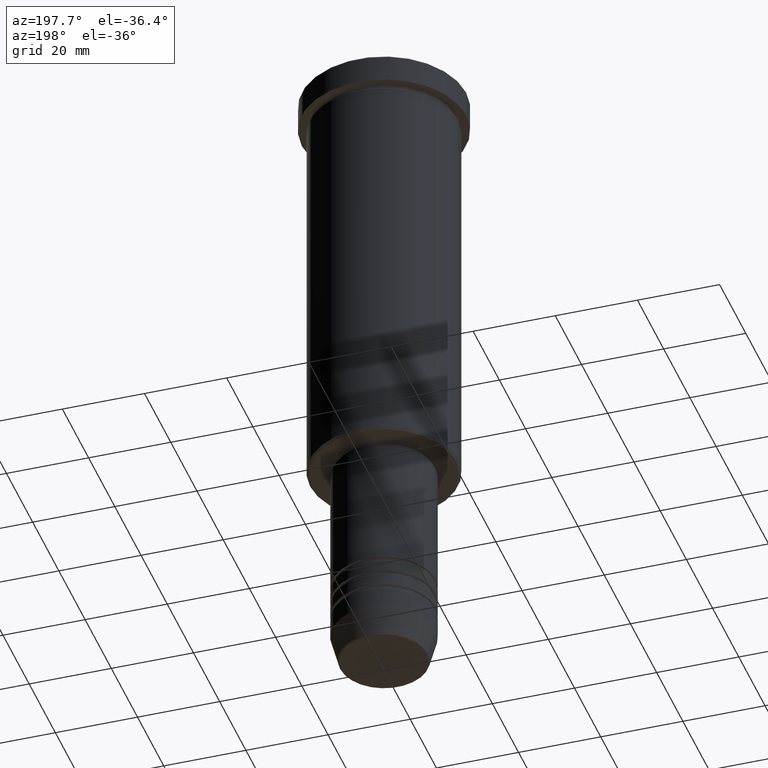
[diagram: clean part render]
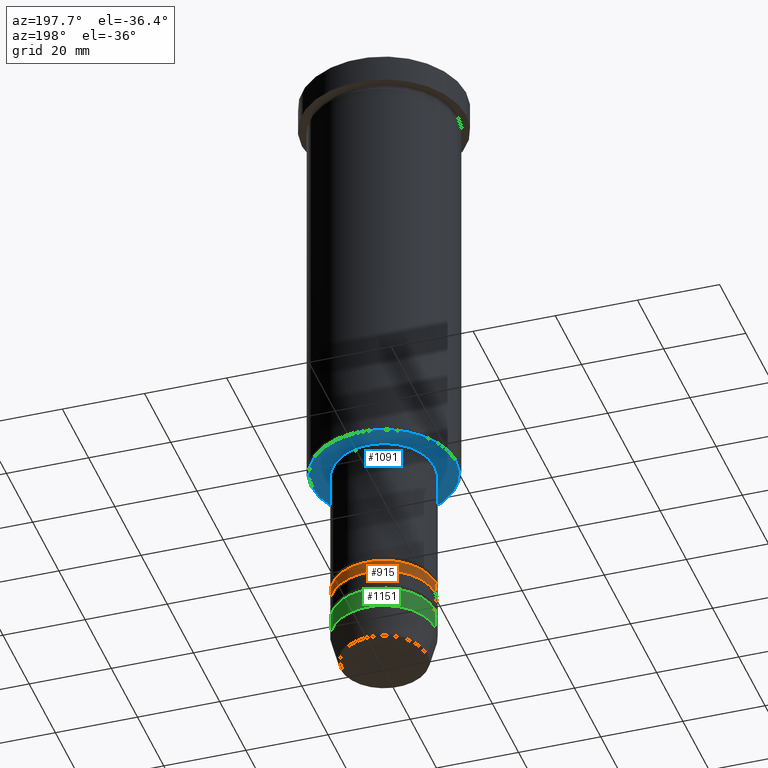
[diagram: same view with three faces highlighted in distinct colors, each labeled with its STEP entity id]
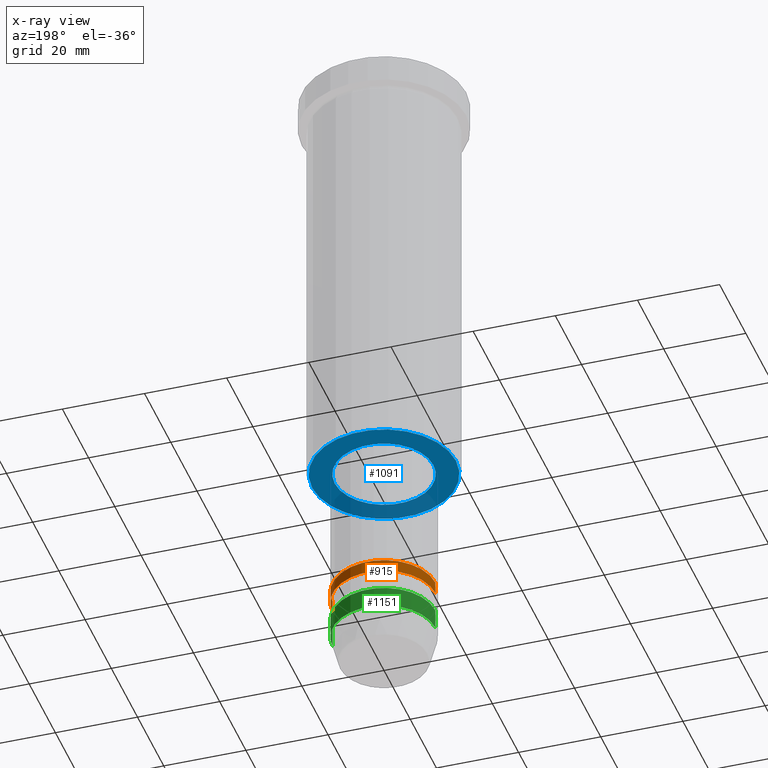
[diagram: x-ray of the same camera — body ghosted, the three highlighted faces saturated]
A machine part, auxiliary view with three faces highlighted in distinct colors.
The next image is the same camera in x-ray (body ghosted, the three faces saturated) — at least one of them is partly hidden behind the body in this view.
Their STEP definitions:

[orange] entity #915 — the highlighted cylindrical surface (partial cylindrical patch) has radius 12.5 mm, axis along (-0, -0, 1).
#20 = AXIS2_PLACEMENT_3D ( 'NONE', #1087, #640, #427 ) ;
#28 = CARTESIAN_POINT ( 'NONE',  ( -12.50000000000000533, 1.530808498934192113E-15, -143.0000000000000000 ) ) ;
#31 = CARTESIAN_POINT ( 'NONE',  ( -12.50000000000000000, 1.530808498934191719E-15, -139.9999999999999716 ) ) ;
#54 = CARTESIAN_POINT ( 'NONE',  ( 12.50000000000000178, 0.000000000000000000, 0.000000000000000000 ) ) ;
#92 = CYLINDRICAL_SURFACE ( 'NONE', #20, 12.50000000000000178 ) ;
#115 = AXIS2_PLACEMENT_3D ( 'NONE', #457, #1181, #264 ) ;
#169 = FACE_OUTER_BOUND ( 'NONE', #317, .T. ) ;
#188 = VERTEX_POINT ( 'NONE', #28 ) ;
#264 = DIRECTION ( 'NONE',  ( 1.000000000000000000, 0.000000000000000000, 0.000000000000000000 ) ) ;
#265 = ORIENTED_EDGE ( 'NONE', *, *, #567, .T. ) ;
#277 = DIRECTION ( 'NONE',  ( -0.000000000000000000, -0.000000000000000000, 1.000000000000000000 ) ) ;
#317 = EDGE_LOOP ( 'NONE', ( #265, #1004, #1134, #694 ) ) ;
#402 = VERTEX_POINT ( 'NONE', #31 ) ;
#427 = DIRECTION ( 'NONE',  ( 1.000000000000000000, 0.000000000000000000, 0.000000000000000000 ) ) ;
#456 = CARTESIAN_POINT ( 'NONE',  ( -12.50000000000000178, 1.530808498934191719E-15, 0.000000000000000000 ) ) ;
#457 = CARTESIAN_POINT ( 'NONE',  ( 0.000000000000000000, 0.000000000000000000, -143.0000000000000000 ) ) ;
#473 = VECTOR ( 'NONE', #277, 1000.000000000000000 ) ;
#567 = EDGE_CURVE ( 'NONE', #688, #188, #625, .T. ) ;
#583 = LINE ( 'NONE', #54, #931 ) ;
#599 = CARTESIAN_POINT ( 'NONE',  ( 0.000000000000000000, 0.000000000000000000, -139.9999999999999716 ) ) ;
#609 = CIRCLE ( 'NONE', #932, 12.50000000000000000 ) ;
#625 = CIRCLE ( 'NONE', #115, 12.50000000000000355 ) ;
#640 = DIRECTION ( 'NONE',  ( -0.000000000000000000, -0.000000000000000000, 1.000000000000000000 ) ) ;
#667 = EDGE_CURVE ( 'NONE', #188, #402, #803, .T. ) ;
#688 = VERTEX_POINT ( 'NONE', #797 ) ;
#691 = DIRECTION ( 'NONE',  ( -0.000000000000000000, -0.000000000000000000, 1.000000000000000000 ) ) ;
#694 = ORIENTED_EDGE ( 'NONE', *, *, #924, .F. ) ;
#797 = CARTESIAN_POINT ( 'NONE',  ( 12.50000000000000355, 0.000000000000000000, -143.0000000000000000 ) ) ;
#803 = LINE ( 'NONE', #456, #473 ) ;
#915 = ADVANCED_FACE ( 'NONE', ( #169 ), #92, .T. ) ;
#924 = EDGE_CURVE ( 'NONE', #688, #1055, #583, .T. ) ;
#931 = VECTOR ( 'NONE', #1132, 1000.000000000000000 ) ;
#932 = AXIS2_PLACEMENT_3D ( 'NONE', #599, #691, #1133 ) ;
#1004 = ORIENTED_EDGE ( 'NONE', *, *, #667, .T. ) ;
#1055 = VERTEX_POINT ( 'NONE', #1057 ) ;
#1057 = CARTESIAN_POINT ( 'NONE',  ( 12.50000000000000000, 0.000000000000000000, -139.9999999999999716 ) ) ;
#1087 = CARTESIAN_POINT ( 'NONE',  ( 0.000000000000000000, 0.000000000000000000, 0.000000000000000000 ) ) ;
#1114 = EDGE_CURVE ( 'NONE', #1055, #402, #609, .T. ) ;
#1132 = DIRECTION ( 'NONE',  ( -0.000000000000000000, -0.000000000000000000, 1.000000000000000000 ) ) ;
#1133 = DIRECTION ( 'NONE',  ( 1.000000000000000000, 0.000000000000000000, 0.000000000000000000 ) ) ;
#1134 = ORIENTED_EDGE ( 'NONE', *, *, #1114, .F. ) ;
#1181 = DIRECTION ( 'NONE',  ( -0.000000000000000000, -0.000000000000000000, 1.000000000000000000 ) ) ;

[blue] entity #1091 — the highlighted planar face has unit normal (0, 0, -1).
#34 = ORIENTED_EDGE ( 'NONE', *, *, #597, .T. ) ;
#36 = CARTESIAN_POINT ( 'NONE',  ( 0.000000000000000000, 0.000000000000000000, -105.9999999999999858 ) ) ;
#39 = CIRCLE ( 'NONE', #267, 17.50000000000001421 ) ;
#43 = CIRCLE ( 'NONE', #836, 12.00000000000000000 ) ;
#49 = DIRECTION ( 'NONE',  ( 0.000000000000000000, 0.000000000000000000, -1.000000000000000000 ) ) ;
#62 = AXIS2_PLACEMENT_3D ( 'NONE', #36, #767, #1167 ) ;
#68 = ORIENTED_EDGE ( 'NONE', *, *, #416, .T. ) ;
#78 = CARTESIAN_POINT ( 'NONE',  ( 0.000000000000000000, 0.000000000000000000, -105.9999999999999858 ) ) ;
#167 = VERTEX_POINT ( 'NONE', #312 ) ;
#173 = VERTEX_POINT ( 'NONE', #479 ) ;
#244 = FACE_BOUND ( 'NONE', #717, .T. ) ;
#246 = CIRCLE ( 'NONE', #929, 17.50000000000001421 ) ;
#267 = AXIS2_PLACEMENT_3D ( 'NONE', #445, #545, #816 ) ;
#312 = CARTESIAN_POINT ( 'NONE',  ( 12.00000000000000000, 0.000000000000000000, -105.9999999999999858 ) ) ;
#332 = DIRECTION ( 'NONE',  ( -0.000000000000000000, -0.000000000000000000, 1.000000000000000000 ) ) ;
#382 = PLANE ( 'NONE',  #664 ) ;
#416 = EDGE_CURVE ( 'NONE', #173, #522, #246, .T. ) ;
#445 = CARTESIAN_POINT ( 'NONE',  ( 0.000000000000000000, 0.000000000000000000, -105.9999999999999858 ) ) ;
#479 = CARTESIAN_POINT ( 'NONE',  ( 17.50000000000001421, 0.000000000000000000, -105.9999999999999858 ) ) ;
#489 = CARTESIAN_POINT ( 'NONE',  ( 0.000000000000000000, 0.000000000000000000, -105.9999999999999858 ) ) ;
#508 = CARTESIAN_POINT ( 'NONE',  ( -12.00000000000000000, 1.469576158976823947E-15, -105.9999999999999858 ) ) ;
#522 = VERTEX_POINT ( 'NONE', #1163 ) ;
#528 = VERTEX_POINT ( 'NONE', #508 ) ;
#545 = DIRECTION ( 'NONE',  ( 0.000000000000000000, 0.000000000000000000, -1.000000000000000000 ) ) ;
#597 = EDGE_CURVE ( 'NONE', #522, #173, #39, .T. ) ;
#613 = EDGE_LOOP ( 'NONE', ( #68, #34 ) ) ;
#642 = DIRECTION ( 'NONE',  ( 0.000000000000000000, 0.000000000000000000, -1.000000000000000000 ) ) ;
#653 = CARTESIAN_POINT ( 'NONE',  ( 0.000000000000000000, 18.00000000000000000, -105.9999999999999858 ) ) ;
#664 = AXIS2_PLACEMENT_3D ( 'NONE', #653, #642, #832 ) ;
#717 = EDGE_LOOP ( 'NONE', ( #1156, #989 ) ) ;
#745 = EDGE_CURVE ( 'NONE', #167, #528, #1084, .T. ) ;
#767 = DIRECTION ( 'NONE',  ( -0.000000000000000000, -0.000000000000000000, 1.000000000000000000 ) ) ;
#816 = DIRECTION ( 'NONE',  ( -1.000000000000000000, 0.000000000000000000, 0.000000000000000000 ) ) ;
#832 = DIRECTION ( 'NONE',  ( -1.000000000000000000, 0.000000000000000000, -0.000000000000000000 ) ) ;
#836 = AXIS2_PLACEMENT_3D ( 'NONE', #78, #332, #1079 ) ;
#929 = AXIS2_PLACEMENT_3D ( 'NONE', #489, #49, #959 ) ;
#959 = DIRECTION ( 'NONE',  ( -1.000000000000000000, 0.000000000000000000, 0.000000000000000000 ) ) ;
#979 = FACE_OUTER_BOUND ( 'NONE', #613, .T. ) ;
#989 = ORIENTED_EDGE ( 'NONE', *, *, #1172, .T. ) ;
#1079 = DIRECTION ( 'NONE',  ( 1.000000000000000000, 0.000000000000000000, 0.000000000000000000 ) ) ;
#1084 = CIRCLE ( 'NONE', #62, 12.00000000000000000 ) ;
#1091 = ADVANCED_FACE ( 'NONE', ( #979, #244 ), #382, .T. ) ;
#1156 = ORIENTED_EDGE ( 'NONE', *, *, #745, .T. ) ;
#1163 = CARTESIAN_POINT ( 'NONE',  ( -17.50000000000001421, 2.173748068486552430E-15, -105.9999999999999858 ) ) ;
#1167 = DIRECTION ( 'NONE',  ( 1.000000000000000000, 0.000000000000000000, 0.000000000000000000 ) ) ;
#1172 = EDGE_CURVE ( 'NONE', #528, #167, #43, .T. ) ;

[green] entity #1151 — the highlighted cylindrical surface (partial cylindrical patch) has radius 12.5 mm, axis along (-0, -0, 1).
#35 = CIRCLE ( 'NONE', #700, 12.50000000000000000 ) ;
#44 = DIRECTION ( 'NONE',  ( -0.000000000000000000, -0.000000000000000000, 1.000000000000000000 ) ) ;
#60 = CARTESIAN_POINT ( 'NONE',  ( -12.50000000000000000, 1.530808498934191521E-15, -148.0000000000000000 ) ) ;
#153 = EDGE_LOOP ( 'NONE', ( #790, #305, #633, #511 ) ) ;
#168 = DIRECTION ( 'NONE',  ( -0.000000000000000000, -0.000000000000000000, 1.000000000000000000 ) ) ;
#182 = EDGE_CURVE ( 'NONE', #1110, #647, #35, .T. ) ;
#212 = VECTOR ( 'NONE', #970, 1000.000000000000000 ) ;
#216 = DIRECTION ( 'NONE',  ( 1.000000000000000000, 0.000000000000000000, 0.000000000000000000 ) ) ;
#218 = LINE ( 'NONE', #1131, #357 ) ;
#285 = CARTESIAN_POINT ( 'NONE',  ( -12.50000000000000000, 1.530808498934191521E-15, -153.0000000000000000 ) ) ;
#305 = ORIENTED_EDGE ( 'NONE', *, *, #892, .T. ) ;
#337 = CYLINDRICAL_SURFACE ( 'NONE', #686, 12.50000000000000000 ) ;
#357 = VECTOR ( 'NONE', #674, 1000.000000000000000 ) ;
#434 = CIRCLE ( 'NONE', #450, 12.50000000000000000 ) ;
#450 = AXIS2_PLACEMENT_3D ( 'NONE', #645, #168, #1177 ) ;
#494 = CARTESIAN_POINT ( 'NONE',  ( 12.50000000000000000, 0.000000000000000000, -148.0000000000000000 ) ) ;
#511 = ORIENTED_EDGE ( 'NONE', *, *, #763, .F. ) ;
#534 = VERTEX_POINT ( 'NONE', #60 ) ;
#546 = DIRECTION ( 'NONE',  ( 1.000000000000000000, 0.000000000000000000, 0.000000000000000000 ) ) ;
#618 = EDGE_CURVE ( 'NONE', #976, #534, #434, .T. ) ;
#620 = DIRECTION ( 'NONE',  ( -0.000000000000000000, -0.000000000000000000, 1.000000000000000000 ) ) ;
#633 = ORIENTED_EDGE ( 'NONE', *, *, #618, .F. ) ;
#645 = CARTESIAN_POINT ( 'NONE',  ( 0.000000000000000000, 0.000000000000000000, -148.0000000000000000 ) ) ;
#647 = VERTEX_POINT ( 'NONE', #285 ) ;
#674 = DIRECTION ( 'NONE',  ( -0.000000000000000000, -0.000000000000000000, 1.000000000000000000 ) ) ;
#686 = AXIS2_PLACEMENT_3D ( 'NONE', #704, #620, #546 ) ;
#700 = AXIS2_PLACEMENT_3D ( 'NONE', #848, #44, #216 ) ;
#704 = CARTESIAN_POINT ( 'NONE',  ( 0.000000000000000000, 0.000000000000000000, 0.000000000000000000 ) ) ;
#763 = EDGE_CURVE ( 'NONE', #1110, #976, #218, .T. ) ;
#790 = ORIENTED_EDGE ( 'NONE', *, *, #182, .T. ) ;
#827 = LINE ( 'NONE', #963, #212 ) ;
#848 = CARTESIAN_POINT ( 'NONE',  ( 0.000000000000000000, 0.000000000000000000, -153.0000000000000000 ) ) ;
#867 = FACE_OUTER_BOUND ( 'NONE', #153, .T. ) ;
#892 = EDGE_CURVE ( 'NONE', #647, #534, #827, .T. ) ;
#939 = CARTESIAN_POINT ( 'NONE',  ( 12.50000000000000000, 0.000000000000000000, -153.0000000000000000 ) ) ;
#963 = CARTESIAN_POINT ( 'NONE',  ( -12.50000000000000000, 1.530808498934191521E-15, 0.000000000000000000 ) ) ;
#970 = DIRECTION ( 'NONE',  ( -0.000000000000000000, -0.000000000000000000, 1.000000000000000000 ) ) ;
#976 = VERTEX_POINT ( 'NONE', #494 ) ;
#1110 = VERTEX_POINT ( 'NONE', #939 ) ;
#1131 = CARTESIAN_POINT ( 'NONE',  ( 12.50000000000000000, 0.000000000000000000, 0.000000000000000000 ) ) ;
#1151 = ADVANCED_FACE ( 'NONE', ( #867 ), #337, .T. ) ;
#1177 = DIRECTION ( 'NONE',  ( 1.000000000000000000, 0.000000000000000000, 0.000000000000000000 ) ) ;